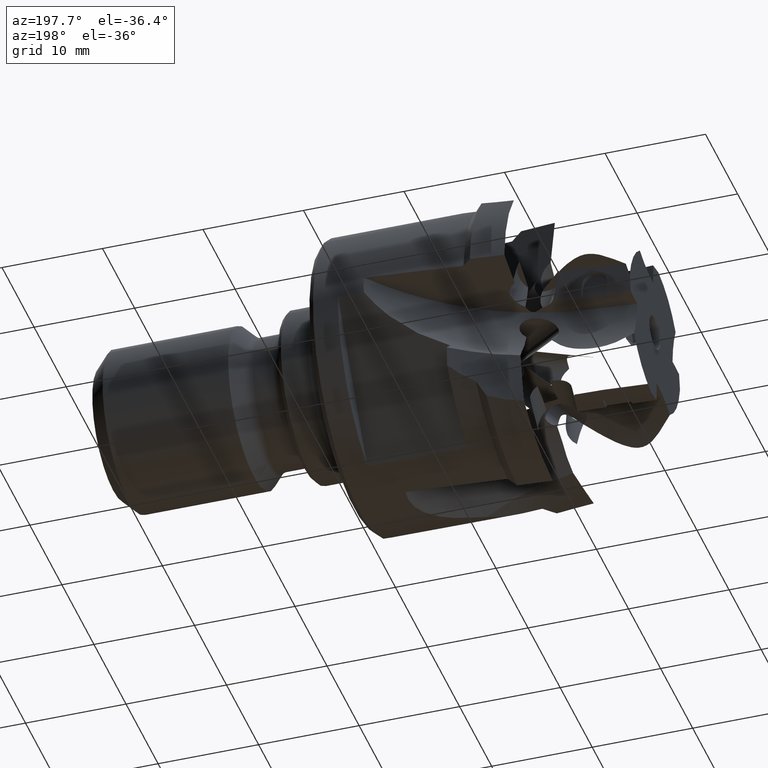
[diagram: clean part render]
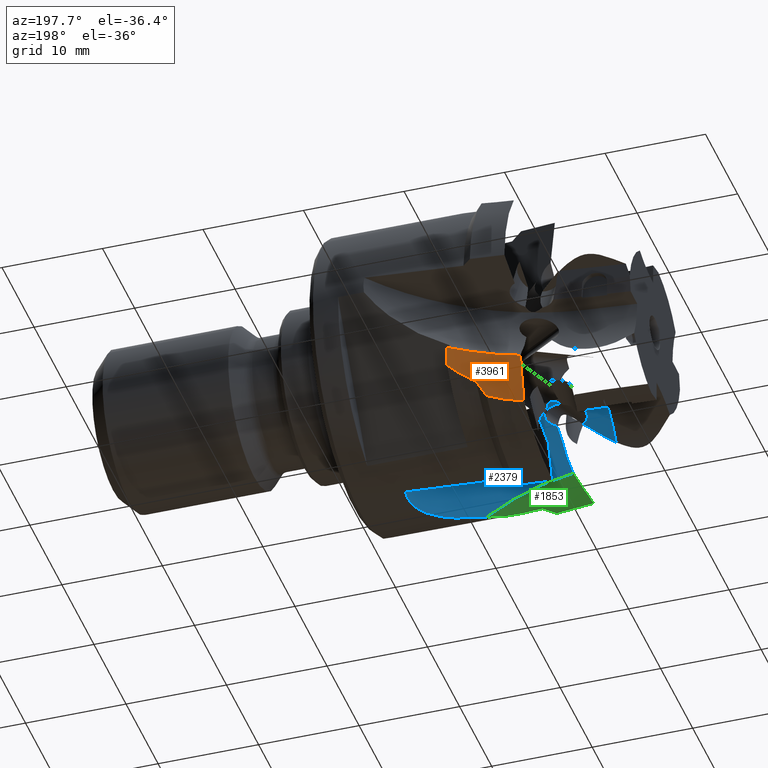
[diagram: same view with three faces highlighted in distinct colors, each labeled with its STEP entity id]
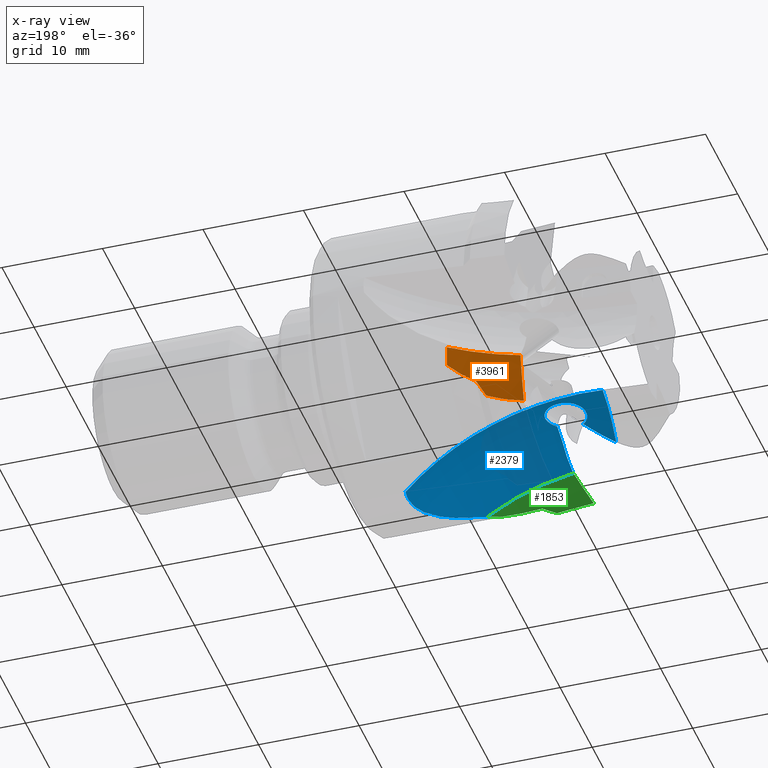
[diagram: x-ray of the same camera — body ghosted, the three highlighted faces saturated]
A machine part, auxiliary view with three faces highlighted in distinct colors.
The next image is the same camera in x-ray (body ghosted, the three faces saturated) — at least one of them is partly hidden behind the body in this view.
Their STEP definitions:

[orange] entity #3961 — the highlighted cylindrical surface (partial cylindrical patch) has radius 21.7261 mm, axis along (-0.0872, -0.0174, 0.996).
#105 = CYLINDRICAL_SURFACE ( 'NONE', #5272, 21.72606868832009400 ) ;
#125 = CARTESIAN_POINT ( 'NONE',  ( 11.05701801409096600, 9.311801826539401400, -12.29719365315754600 ) ) ;
#170 = EDGE_LOOP ( 'NONE', ( #4357, #189, #2855, #2577, #924, #4595 ) ) ;
#189 = ORIENTED_EDGE ( 'NONE', *, *, #4776, .T. ) ;
#243 = FACE_OUTER_BOUND ( 'NONE', #170, .T. ) ;
#252 = CARTESIAN_POINT ( 'NONE',  ( 11.37910749741807100, 9.370470575526384800, -6.912745893251020000 ) ) ;
#421 = VERTEX_POINT ( 'NONE', #252 ) ;
#523 = CARTESIAN_POINT ( 'NONE',  ( 13.39337320420237800, 9.818667118499060800, -11.90793983323574200 ) ) ;
#719 = CARTESIAN_POINT ( 'NONE',  ( 11.05701801409096600, 9.311801826539401400, -12.29719365315754600 ) ) ;
#790 = EDGE_CURVE ( 'NONE', #421, #1388, #3252, .T. ) ;
#812 = CARTESIAN_POINT ( 'NONE',  ( 17.90000000000000200, 11.86586100407704500, -7.674725482935604000 ) ) ;
#924 = ORIENTED_EDGE ( 'NONE', *, *, #2641, .F. ) ;
#947 = CARTESIAN_POINT ( 'NONE',  ( 11.09871389874220100, 9.318158399437784600, -11.84969132677126400 ) ) ;
#1191 = CARTESIAN_POINT ( 'NONE',  ( 17.89999999999999900, 11.84308156068769000, -8.366087445568902900 ) ) ;
#1221 = CARTESIAN_POINT ( 'NONE',  ( 15.13559766941669000, 10.46032291940538000, -10.46693095004296800 ) ) ;
#1370 = CARTESIAN_POINT ( 'NONE',  ( 11.14118274425741400, 9.324602336845453400, -11.17670939301054900 ) ) ;
#1388 = VERTEX_POINT ( 'NONE', #3106 ) ;
#1435 = VERTEX_POINT ( 'NONE', #719 ) ;
#1477 = CARTESIAN_POINT ( 'NONE',  ( 6.880592836451517000, 30.62570322403922400, -6.935363414447701700 ) ) ;
#1654 = CARTESIAN_POINT ( 'NONE',  ( 17.90000000000000200, 11.88896284582131300, -6.985286203351426700 ) ) ;
#1664 = AXIS2_PLACEMENT_3D ( 'NONE', #1477, #4293, #1878 ) ;
#1786 = CARTESIAN_POINT ( 'NONE',  ( 11.20966195258773700, 9.335957098224556100, -10.05493447266903000 ) ) ;
#1878 = DIRECTION ( 'NONE',  ( 0.9961935453064438800, 0.0000000000000000000, 0.08716891814045794900 ) ) ;
#1959 = B_SPLINE_CURVE_WITH_KNOTS ( 'NONE', 3,
 ( #5003, #2156, #523, #3363 ),
 .UNSPECIFIED., .F., .F.,
 ( 4, 4 ),
 ( 0.001068201408498498200, 0.004700179318308629100 ),
 .UNSPECIFIED. ) ;
#2074 = CARTESIAN_POINT ( 'NONE',  ( 14.50000000000038200, 10.21144299541527900, -11.56101452950269600 ) ) ;
#2119 = CARTESIAN_POINT ( 'NONE',  ( 15.42499999999999500, 10.58955133145809800, -9.905120019384625600 ) ) ;
#2156 = CARTESIAN_POINT ( 'NONE',  ( 12.24386339621617200, 9.517224552701307500, -12.14164143769769300 ) ) ;
#2169 = CARTESIAN_POINT ( 'NONE',  ( 17.89999999999999900, 11.84308156068769000, -8.366087445568902900 ) ) ;
#2182 = CARTESIAN_POINT ( 'NONE',  ( 11.33618519090786100, 9.360430750188070800, -7.810819471734794700 ) ) ;
#2309 = EDGE_CURVE ( 'NONE', #1435, #3999, #1959, .T. ) ;
#2363 = VERTEX_POINT ( 'NONE', #1191 ) ;
#2411 = EDGE_CURVE ( 'NONE', #2363, #1388, #4379, .T. ) ;
#2499 = B_SPLINE_CURVE_WITH_KNOTS ( 'NONE', 3,
 ( #125, #2976, #3377, #947, #3793, #1370, #4202, #1786, #4608, #2182, #5035 ),
 .UNSPECIFIED., .F., .F.,
 ( 4, 2, 1, 2, 2, 4 ),
 ( 5.563541519565735400E-005, 0.0003927354972152483200, 0.0007298355792348392100, 0.001404035743274026400, 0.002752436071352400100, 0.005449236727509148100 ),
 .UNSPECIFIED. ) ;
#2577 = ORIENTED_EDGE ( 'NONE', *, *, #2411, .F. ) ;
#2641 = EDGE_CURVE ( 'NONE', #4052, #2363, #3992, .T. ) ;
#2841 = CARTESIAN_POINT ( 'NONE',  ( 14.82635536525159200, 10.33310939868059800, -11.01811917768180600 ) ) ;
#2855 = ORIENTED_EDGE ( 'NONE', *, *, #790, .T. ) ;
#2888 = B_SPLINE_CURVE_WITH_KNOTS ( 'NONE', 3,
 ( #5278, #2841, #1221, #4067 ),
 .UNSPECIFIED., .F., .F.,
 ( 4, 4 ),
 ( 3.950778265904036300E-007, 0.001934452352681083500 ),
 .UNSPECIFIED. ) ;
#2976 = CARTESIAN_POINT ( 'NONE',  ( 11.08117857678265800, 9.315738048039625200, -12.18650287128587300 ) ) ;
#3106 = CARTESIAN_POINT ( 'NONE',  ( 17.89999999999999900, 11.91238655300085700, -6.297785510990721900 ) ) ;
#3252 = CIRCLE ( 'NONE', #1664, 21.72606868832009400 ) ;
#3256 = DIRECTION ( 'NONE',  ( 0.9961935453064438800, 0.0000000000000000000, 0.08716891814045796300 ) ) ;
#3362 = CARTESIAN_POINT ( 'NONE',  ( 16.33693089984693400, 10.97159515453714800, -9.496677449537456200 ) ) ;
#3363 = CARTESIAN_POINT ( 'NONE',  ( 14.50000000000038200, 10.21144299541527900, -11.56101452950269600 ) ) ;
#3377 = CARTESIAN_POINT ( 'NONE',  ( 11.08435232570300900, 9.316076932627277400, -12.07400180028712300 ) ) ;
#3652 = CARTESIAN_POINT ( 'NONE',  ( 6.235640340118845200, 30.49704686280209700, 0.4353545843762587400 ) ) ;
#3661 = CARTESIAN_POINT ( 'NONE',  ( 17.89999999999999900, 11.84308156068769000, -8.366087445568902900 ) ) ;
#3793 = CARTESIAN_POINT ( 'NONE',  ( 11.12013673531852300, 9.321321628183072900, -11.51321676252251300 ) ) ;
#3961 = ADVANCED_FACE ( 'NONE', ( #243 ), #105, .F. ) ;
#3992 = B_SPLINE_CURVE_WITH_KNOTS ( 'NONE', 3,
 ( #4191, #3362, #4593, #2169 ),
 .UNSPECIFIED., .F., .F.,
 ( 4, 4 ),
 ( 0.0000000000000000000, 0.003171927595614679300 ),
 .UNSPECIFIED. ) ;
#3999 = VERTEX_POINT ( 'NONE', #2074 ) ;
#4052 = VERTEX_POINT ( 'NONE', #2119 ) ;
#4067 = CARTESIAN_POINT ( 'NONE',  ( 15.42499999999999500, 10.58955133145809800, -9.905120019384625600 ) ) ;
#4191 = CARTESIAN_POINT ( 'NONE',  ( 15.42499999999999500, 10.58955133145809800, -9.905120019384625600 ) ) ;
#4202 = CARTESIAN_POINT ( 'NONE',  ( 11.18271580868635900, 9.331303145839886100, -10.50366817676328400 ) ) ;
#4293 = DIRECTION ( 'NONE',  ( -0.08715574274765840200, -0.01738599476177432300, 0.9960429728140486300 ) ) ;
#4357 = ORIENTED_EDGE ( 'NONE', *, *, #2309, .F. ) ;
#4379 =( BOUNDED_CURVE ( )  B_SPLINE_CURVE ( 3, ( #3661, #812, #1654, #4467 ),
 .UNSPECIFIED., .F., .F. ) 
 B_SPLINE_CURVE_WITH_KNOTS ( ( 4, 4 ),
 ( 5.236962429930007300, 5.246568327830590100 ),
 .UNSPECIFIED. ) 
 CURVE ( )  GEOMETRIC_REPRESENTATION_ITEM ( )  RATIONAL_B_SPLINE_CURVE ( ( 1.000000000000000000, 0.9999923105752421800, 0.9999923105752421800, 1.000000000000000000 ) ) 
 REPRESENTATION_ITEM ( '' )  );
#4467 = CARTESIAN_POINT ( 'NONE',  ( 17.89999999999999900, 11.91238655300085700, -6.297785510990721900 ) ) ;
#4520 = EDGE_CURVE ( 'NONE', #3999, #4052, #2888, .T. ) ;
#4593 = CARTESIAN_POINT ( 'NONE',  ( 17.16458162819480300, 11.39873358020110100, -8.995109005343985900 ) ) ;
#4595 = ORIENTED_EDGE ( 'NONE', *, *, #4520, .F. ) ;
#4608 = CARTESIAN_POINT ( 'NONE',  ( 11.28774989754189700, 9.350314593344421600, -8.708583652300008600 ) ) ;
#4776 = EDGE_CURVE ( 'NONE', #1435, #421, #2499, .T. ) ;
#5003 = CARTESIAN_POINT ( 'NONE',  ( 11.05701801409096600, 9.311801826539401400, -12.29719365315754600 ) ) ;
#5035 = CARTESIAN_POINT ( 'NONE',  ( 11.37910749741807100, 9.370470575526384800, -6.912745893251020000 ) ) ;
#5272 = AXIS2_PLACEMENT_3D ( 'NONE', #3652, #5273, #3256 ) ;
#5273 = DIRECTION ( 'NONE',  ( -0.08715574274765840200, -0.01738599476177432300, 0.9960429728140486300 ) ) ;
#5278 = CARTESIAN_POINT ( 'NONE',  ( 14.50000000000038200, 10.21144299541527900, -11.56101452950269600 ) ) ;

[blue] entity #2379 — the highlighted toroidal blend (fillet) surface has major radius 15 mm and minor (blend) radius 10 mm.
#43 = ORIENTED_EDGE ( 'NONE', *, *, #1155, .T. ) ;
#147 = CARTESIAN_POINT ( 'NONE',  ( 8.515038379111340200, -4.492260514789945700, -6.680072733957660000 ) ) ;
#179 = CARTESIAN_POINT ( 'NONE',  ( 11.64256579499039300, -4.466984686839124300, -7.264191897523410500 ) ) ;
#246 = CIRCLE ( 'NONE', #2618, 21.72606868832010100 ) ;
#318 = CARTESIAN_POINT ( 'NONE',  ( 6.235640340118845200, -0.09695857922223392900, -30.50000000000000000 ) ) ;
#360 = CARTESIAN_POINT ( 'NONE',  ( 12.40235321414293800, -1.743268434096503900, -6.476139456708513500 ) ) ;
#372 = CARTESIAN_POINT ( 'NONE',  ( 10.08751664636560400, -0.5688430104885406900, -5.819964564507869500 ) ) ;
#391 = CARTESIAN_POINT ( 'NONE',  ( 8.805979628340272900, -3.244691011060621300, -6.188207235549824300 ) ) ;
#398 = CARTESIAN_POINT ( 'NONE',  ( 22.64090620254961200, -4.538469945289403300, -13.77478334541834700 ) ) ;
#454 = VERTEX_POINT ( 'NONE', #1940 ) ;
#506 = CARTESIAN_POINT ( 'NONE',  ( 25.34057972918638400, -0.1871420122117618300, -14.50545969096602400 ) ) ;
#558 = CARTESIAN_POINT ( 'NONE',  ( 7.681312353300583600, -5.295997647431952300, -7.029841936098550000 ) ) ;
#586 = CARTESIAN_POINT ( 'NONE',  ( 11.65869732733849200, -3.340161131643376400, -6.747328634741033500 ) ) ;
#617 = CIRCLE ( 'NONE', #2045, 10.00000000000000200 ) ;
#706 = EDGE_CURVE ( 'NONE', #5281, #729, #1665, .T. ) ;
#726 = DIRECTION ( 'NONE',  ( -0.9961946980917454300, -0.08715574274765840200, 0.0000000000000000000 ) ) ;
#729 = VERTEX_POINT ( 'NONE', #5051 ) ;
#764 = CARTESIAN_POINT ( 'NONE',  ( 12.40311773651894900, -1.384826067487034300, -6.410360841016163200 ) ) ;
#784 = CARTESIAN_POINT ( 'NONE',  ( 9.349131664149631100, -1.092947516492455600, -5.762206813191768100 ) ) ;
#799 = CARTESIAN_POINT ( 'NONE',  ( 8.982825364391247900, -3.431259524060175500, -6.278460838178846300 ) ) ;
#807 = CARTESIAN_POINT ( 'NONE',  ( 23.57876981133510700, -3.646934935347255500, -14.03810589235512300 ) ) ;
#881 = ORIENTED_EDGE ( 'NONE', *, *, #2133, .T. ) ;
#899 = EDGE_CURVE ( 'NONE', #1443, #454, #4719, .T. ) ;
#905 = B_SPLINE_CURVE_WITH_KNOTS ( 'NONE', 3,
 ( #3374, #4201, #3828, #1413, #4236, #1821, #4649, #2219, #5066, #2620, #179, #3024, #586, #3428 ),
 .UNSPECIFIED., .F., .F.,
 ( 4, 2, 2, 2, 2, 2, 4 ),
 ( 0.0000000000000000000, 0.0006207502686696417600, 0.001241500537339283500, 0.001862250806008924900, 0.002483001074678567000, 0.003724501612017852000, 0.004966002149357139200 ),
 .UNSPECIFIED. ) ;
#920 = CARTESIAN_POINT ( 'NONE',  ( 25.38898366338871800, 0.6959169704677447000, -14.48497592856717600 ) ) ;
#965 = CARTESIAN_POINT ( 'NONE',  ( 6.749510904247070000, -5.970526004057522800, -7.423048672349348300 ) ) ;
#977 = AXIS2_PLACEMENT_3D ( 'NONE', #318, #3152, #726 ) ;
#1077 = TOROIDAL_SURFACE ( 'NONE', #2490, 15.00000000000000200, 10.00000000000000200 ) ;
#1144 = DIRECTION ( 'NONE',  ( 0.9961946980917456600, 0.08715574274765840200, 6.086052987529241100E-016 ) ) ;
#1155 = EDGE_CURVE ( 'NONE', #2192, #454, #1405, .T. ) ;
#1171 = CARTESIAN_POINT ( 'NONE',  ( 12.34089135332565600, -1.127742843906378400, -6.354305585819900200 ) ) ;
#1193 = CARTESIAN_POINT ( 'NONE',  ( 8.994134762105252500, -1.504782266553987200, -5.773673441667364500 ) ) ;
#1196 = EDGE_CURVE ( 'NONE', #2719, #1443, #246, .T. ) ;
#1210 = CARTESIAN_POINT ( 'NONE',  ( 9.205142161312094700, -3.567679308090918600, -6.361626818967677900 ) ) ;
#1219 = CARTESIAN_POINT ( 'NONE',  ( 24.38241051257135100, -2.617081937783515900, -14.26698340604646700 ) ) ;
#1328 = EDGE_LOOP ( 'NONE', ( #3017, #4989, #881, #2964, #1820, #43, #2084 ) ) ;
#1341 = CARTESIAN_POINT ( 'NONE',  ( 25.33950646119371400, 1.355138320165186300, -14.43817025567056300 ) ) ;
#1405 = CIRCLE ( 'NONE', #977, 25.00000000000000000 ) ;
#1413 = CARTESIAN_POINT ( 'NONE',  ( 11.48493059040608200, -6.483476763012770800, -8.677977519832849000 ) ) ;
#1443 = VERTEX_POINT ( 'NONE', #2431 ) ;
#1609 = CARTESIAN_POINT ( 'NONE',  ( 12.10742755888736800, -0.7483190973801329100, -6.248726658473148500 ) ) ;
#1629 = CARTESIAN_POINT ( 'NONE',  ( 8.737451428858268100, -1.977943305495135400, -5.829447491432855300 ) ) ;
#1665 = B_SPLINE_CURVE_WITH_KNOTS ( 'NONE', 3,
 ( #2595, #5038, #2186, #147, #2994, #558, #3395, #965 ),
 .UNSPECIFIED., .F., .F.,
 ( 4, 2, 2, 4 ),
 ( 0.01105054996784007300, 0.01196262143170225300, 0.01287469289556443500, 0.01469883582328879500 ),
 .UNSPECIFIED. ) ;
#1820 = ORIENTED_EDGE ( 'NONE', *, *, #2860, .F. ) ;
#1821 = CARTESIAN_POINT ( 'NONE',  ( 11.61324121807360800, -6.006703365417106300, -8.298901688357661400 ) ) ;
#1940 = CARTESIAN_POINT ( 'NONE',  ( 25.30076740495740500, 1.571023907632305800, -14.41464130256621300 ) ) ;
#2012 = CARTESIAN_POINT ( 'NONE',  ( 11.65753180087851800, -0.4658998487443887800, -6.118773273624314300 ) ) ;
#2024 = DIRECTION ( 'NONE',  ( -0.08715574274765840200, 0.9961946980917455500, 6.956390396483597400E-015 ) ) ;
#2029 = CARTESIAN_POINT ( 'NONE',  ( 8.612118178092220700, -2.497923524530653700, -5.936614056825361800 ) ) ;
#2039 = CARTESIAN_POINT ( 'NONE',  ( 20.52341424227732200, -5.975691452295363200, -13.21767817297962100 ) ) ;
#2045 = AXIS2_PLACEMENT_3D ( 'NONE', #3581, #1144, #3991 ) ;
#2084 = ORIENTED_EDGE ( 'NONE', *, *, #899, .F. ) ;
#2133 = EDGE_CURVE ( 'NONE', #3270, #5281, #4200, .T. ) ;
#2186 = CARTESIAN_POINT ( 'NONE',  ( 8.910597050416445300, -4.058206200987888800, -6.523554801940608000 ) ) ;
#2192 = VERTEX_POINT ( 'NONE', #4887 ) ;
#2219 = CARTESIAN_POINT ( 'NONE',  ( 11.62690379072418300, -5.510978594701319000, -7.921991764348117500 ) ) ;
#2379 = ADVANCED_FACE ( 'NONE', ( #4956 ), #1077, .F. ) ;
#2381 = DIRECTION ( 'NONE',  ( -0.08715574274765840200, 0.9961946980917455500, 6.956390396483597400E-015 ) ) ;
#2383 = CARTESIAN_POINT ( 'NONE',  ( 12.12841511724199100, -2.411077065533565800, -6.566400071001692300 ) ) ;
#2402 = CARTESIAN_POINT ( 'NONE',  ( 11.13492045812465000, -0.3656195679773470200, -6.000350552591209300 ) ) ;
#2418 = CARTESIAN_POINT ( 'NONE',  ( 8.658312899695939500, -2.933051534912304100, -6.067559988247527500 ) ) ;
#2431 = CARTESIAN_POINT ( 'NONE',  ( 19.76019912656191100, -6.341979804039426400, -13.03952806527751700 ) ) ;
#2490 = AXIS2_PLACEMENT_3D ( 'NONE', #2823, #2024, #3227 ) ;
#2520 = CARTESIAN_POINT ( 'NONE',  ( 11.65016111285255100, -2.948032725041609400, -6.612322660711785500 ) ) ;
#2595 = CARTESIAN_POINT ( 'NONE',  ( 9.286948919763599300, -3.598368822639208500, -6.385933471378742800 ) ) ;
#2618 = AXIS2_PLACEMENT_3D ( 'NONE', #4815, #2381, #5234 ) ;
#2620 = CARTESIAN_POINT ( 'NONE',  ( 11.63738157166819700, -4.824658865898745900, -7.466517449746038300 ) ) ;
#2719 = VERTEX_POINT ( 'NONE', #4219 ) ;
#2792 = CARTESIAN_POINT ( 'NONE',  ( 12.35888060038929800, -1.921649702263000800, -6.503348702417672400 ) ) ;
#2813 = CARTESIAN_POINT ( 'NONE',  ( 10.60314403707627500, -0.4154720817635763100, -5.900677034844982800 ) ) ;
#2823 = CARTESIAN_POINT ( 'NONE',  ( 6.235640340118845200, -0.09695857922223263800, -30.50000000000000000 ) ) ;
#2825 = CARTESIAN_POINT ( 'NONE',  ( 8.758263303328849500, -3.170838592315404100, -6.156842258570067700 ) ) ;
#2838 = CARTESIAN_POINT ( 'NONE',  ( 22.30143319302125700, -4.809680050700810000, -13.68165297513175800 ) ) ;
#2860 = EDGE_CURVE ( 'NONE', #2192, #729, #617, .T. ) ;
#2945 = CARTESIAN_POINT ( 'NONE',  ( 25.25626421127209300, -0.6180941141645484000, -14.49302102146409000 ) ) ;
#2964 = ORIENTED_EDGE ( 'NONE', *, *, #706, .T. ) ;
#2994 = CARTESIAN_POINT ( 'NONE',  ( 8.311445753925989200, -4.700150141738921800, -6.764113308000601100 ) ) ;
#3017 = ORIENTED_EDGE ( 'NONE', *, *, #1196, .F. ) ;
#3024 = CARTESIAN_POINT ( 'NONE',  ( 11.65229283007205700, -3.725832115899951000, -6.904703149730573300 ) ) ;
#3152 = DIRECTION ( 'NONE',  ( -0.08715574274765840200, 0.9961946980917455500, 6.956390396483597400E-015 ) ) ;
#3194 = CARTESIAN_POINT ( 'NONE',  ( 12.41020667739263300, -1.475566190515883200, -6.427960131127540500 ) ) ;
#3214 = CARTESIAN_POINT ( 'NONE',  ( 9.764551446179895700, -0.7469048015788649600, -5.782641872056179200 ) ) ;
#3227 = DIRECTION ( 'NONE',  ( -0.9961946980917454300, -0.08715574274765838800, 1.206741372883970600E-031 ) ) ;
#3231 = CARTESIAN_POINT ( 'NONE',  ( 8.918596550000284400, -3.374892984630489100, -6.249085388134564500 ) ) ;
#3243 = CARTESIAN_POINT ( 'NONE',  ( 23.27895531259836300, -3.957304061100608300, -13.95285312133352000 ) ) ;
#3270 = VERTEX_POINT ( 'NONE', #2520 ) ;
#3352 = CARTESIAN_POINT ( 'NONE',  ( 25.38706660557347700, 0.4723879057772911200, -14.49397100215186500 ) ) ;
#3373 = EDGE_CURVE ( 'NONE', #2719, #3270, #905, .T. ) ;
#3374 = CARTESIAN_POINT ( 'NONE',  ( 11.37910749741807100, -7.075230309561560700, -9.248399356544124900 ) ) ;
#3395 = CARTESIAN_POINT ( 'NONE',  ( 7.237360433593748300, -5.657643325198479900, -7.226557950404125700 ) ) ;
#3428 = CARTESIAN_POINT ( 'NONE',  ( 11.65016111285255100, -2.948032725041609400, -6.612322660711785500 ) ) ;
#3581 = CARTESIAN_POINT ( 'NONE',  ( 6.235640340118845200, -0.09695857922233737400, -15.49999999999999800 ) ) ;
#3609 = CARTESIAN_POINT ( 'NONE',  ( 12.36835051011845400, -1.211440031770945300, -6.373614484776818600 ) ) ;
#3628 = CARTESIAN_POINT ( 'NONE',  ( 9.219735175015324900, -1.223990973709646200, -5.761335838971192800 ) ) ;
#3647 = CARTESIAN_POINT ( 'NONE',  ( 9.126108806982614400, -3.527863383494886900, -6.334801290449791900 ) ) ;
#3656 = CARTESIAN_POINT ( 'NONE',  ( 24.13120789750474400, -2.976510190610653700, -14.19538441018145700 ) ) ;
#3767 = CARTESIAN_POINT ( 'NONE',  ( 25.36508079598128900, 1.136974927307224500, -14.45704382284394600 ) ) ;
#3828 = CARTESIAN_POINT ( 'NONE',  ( 11.41244624163701000, -6.786522117301056600, -8.950505995124727200 ) ) ;
#3991 = DIRECTION ( 'NONE',  ( 0.08715574274765836000, -0.9961946980917455500, -6.938893903907226800E-015 ) ) ;
#4001 = CARTESIAN_POINT ( 'NONE',  ( 11.78656320072315300, -2.828448277283377000, -6.605329114455754400 ) ) ;
#4023 = CARTESIAN_POINT ( 'NONE',  ( 12.22569530952898600, -0.8865460343204262200, -6.292720933339621700 ) ) ;
#4039 = CARTESIAN_POINT ( 'NONE',  ( 8.896636479931176600, -1.654924531196340800, -5.786645277193440700 ) ) ;
#4058 = CARTESIAN_POINT ( 'NONE',  ( 9.286948919763599300, -3.598368822639208500, -6.385933471378742800 ) ) ;
#4065 = CARTESIAN_POINT ( 'NONE',  ( 24.80956010891358700, -1.862226284890237300, -14.38499380053192000 ) ) ;
#4133 = CARTESIAN_POINT ( 'NONE',  ( 24.98814557287161600, -1.463724322523958900, -14.43215887420231500 ) ) ;
#4176 = CARTESIAN_POINT ( 'NONE',  ( 25.30076740495740500, 1.571023907632305800, -14.41464130256621300 ) ) ;
#4200 = B_SPLINE_CURVE_WITH_KNOTS ( 'NONE', 3,
 ( #4405, #4001, #4818, #2383, #5237, #2792, #360, #3194, #764, #3609, #1171, #4023, #1609, #4423, #2012, #4839, #2402, #5253, #2813, #372, #3214, #784, #3628, #1193, #4039, #1629, #4439, #2029, #4857, #2418, #5269, #2825, #391, #3231, #799, #3647, #1210, #4058 ),
 .UNSPECIFIED., .F., .F.,
 ( 4, 2, 2, 2, 2, 2, 2, 2, 2, 2, 2, 2, 2, 2, 2, 2, 2, 2, 4 ),
 ( 0.003158957002748431300, 0.003701081345583205000, 0.004243205688417978800, 0.004785330031252752100, 0.005056392202670139200, 0.005327454374087525400, 0.005869578716922299600, 0.006411703059757073800, 0.006953827402591846200, 0.007495951745426620400, 0.008580200431096161900, 0.009122324773930930900, 0.009664449116765699800, 0.01020657345960046900, 0.01074869780243523800, 0.01101975997385262400, 0.01129082214527000700, 0.01156188431668739300, 0.01183294648810477600 ),
 .UNSPECIFIED. ) ;
#4201 = CARTESIAN_POINT ( 'NONE',  ( 11.39599755291137100, -6.933089684553280600, -9.096996975690368400 ) ) ;
#4219 = CARTESIAN_POINT ( 'NONE',  ( 11.37910749741807100, -7.075230309561560700, -9.248399356544124900 ) ) ;
#4236 = CARTESIAN_POINT ( 'NONE',  ( 11.54287660901345800, -6.326973000553058700, -8.552414785012562200 ) ) ;
#4367 = CARTESIAN_POINT ( 'NONE',  ( 9.286948919763599300, -3.598368822639208500, -6.385933471378742800 ) ) ;
#4405 = CARTESIAN_POINT ( 'NONE',  ( 11.65016111285255100, -2.948032725041609400, -6.612322660711785500 ) ) ;
#4423 = CARTESIAN_POINT ( 'NONE',  ( 11.82333759089800300, -0.5386067974320121200, -6.161866323001037300 ) ) ;
#4439 = CARTESIAN_POINT ( 'NONE',  ( 8.677140586874708500, -2.149157609789038600, -5.859259437556993100 ) ) ;
#4649 = CARTESIAN_POINT ( 'NONE',  ( 11.62040207614973900, -5.842839617044858400, -8.169476005907974100 ) ) ;
#4719 = B_SPLINE_CURVE_WITH_KNOTS ( 'NONE', 3,
 ( #4862, #2039, #5276, #2838, #398, #3243, #807, #3656, #1219, #4065, #4133, #2945, #506, #3352, #920, #3767, #1341, #4176 ),
 .UNSPECIFIED., .F., .F.,
 ( 4, 2, 2, 2, 2, 2, 2, 2, 4 ),
 ( 0.003162182537564143700, 0.005757075737112047100, 0.007054522336885998800, 0.008351968936659952300, 0.009649415536433904000, 0.01094686213620785600, 0.01224430873598181100, 0.01289303203586878600, 0.01354175533575576300 ),
 .UNSPECIFIED. ) ;
#4815 = CARTESIAN_POINT ( 'NONE',  ( 6.880592836451517000, -7.468799345101151000, -30.50000000000005000 ) ) ;
#4818 = CARTESIAN_POINT ( 'NONE',  ( 11.91045770019526300, -2.697988978098466300, -6.594880555015366900 ) ) ;
#4839 = CARTESIAN_POINT ( 'NONE',  ( 11.31548757596852000, -0.3800844295813908800, -6.038526002489470900 ) ) ;
#4857 = CARTESIAN_POINT ( 'NONE',  ( 8.607294307123858300, -2.676495669527982500, -5.984464979520614800 ) ) ;
#4862 = CARTESIAN_POINT ( 'NONE',  ( 19.76019912656191100, -6.341979804039426400, -13.03952806527751700 ) ) ;
#4887 = CARTESIAN_POINT ( 'NONE',  ( 6.235640340118845200, -0.09695857922240849700, -5.499999999999999100 ) ) ;
#4956 = FACE_OUTER_BOUND ( 'NONE', #1328, .T. ) ;
#4989 = ORIENTED_EDGE ( 'NONE', *, *, #3373, .T. ) ;
#5038 = CARTESIAN_POINT ( 'NONE',  ( 9.103039246828132000, -3.831313620027711600, -6.450913468410891300 ) ) ;
#5051 = CARTESIAN_POINT ( 'NONE',  ( 6.749510904247070000, -5.970526004057522800, -7.423048672349348300 ) ) ;
#5066 = CARTESIAN_POINT ( 'NONE',  ( 11.62927645837238400, -5.341849983675166100, -7.803824103601521700 ) ) ;
#5234 = DIRECTION ( 'NONE',  ( -0.9961946980917455500, -0.08715574274765841600, 0.0000000000000000000 ) ) ;
#5237 = CARTESIAN_POINT ( 'NONE',  ( 12.22248985752845800, -2.253619499335303800, -6.548208711855129300 ) ) ;
#5253 = CARTESIAN_POINT ( 'NONE',  ( 10.78112887169917900, -0.3833340979982718900, -5.931895541462076900 ) ) ;
#5269 = CARTESIAN_POINT ( 'NONE',  ( 8.685007365822459100, -3.015871600143108700, -6.096882265612149100 ) ) ;
#5276 = CARTESIAN_POINT ( 'NONE',  ( 21.25853223110635800, -5.556980533064605200, -13.40345360880189000 ) ) ;
#5281 = VERTEX_POINT ( 'NONE', #4367 ) ;

[green] entity #1853 — the highlighted cylindrical surface (partial cylindrical patch) has radius 21.7261 mm, axis along (-0.0872, 0.9962, 0).
#151 = CARTESIAN_POINT ( 'NONE',  ( 18.61018540410417200, -7.903573263275935000, -12.15837274158492000 ) ) ;
#172 = CARTESIAN_POINT ( 'NONE',  ( 11.20966195258841600, -10.21633797519451100, -9.159052383621787600 ) ) ;
#211 = EDGE_CURVE ( 'NONE', #1710, #2719, #2176, .T. ) ;
#246 = CIRCLE ( 'NONE', #2618, 21.72606868832010100 ) ;
#337 = CARTESIAN_POINT ( 'NONE',  ( 15.42499999999999500, -10.08842457545399000, -10.41507031111052900 ) ) ;
#355 = CARTESIAN_POINT ( 'NONE',  ( 17.16897359493318100, -9.190066398557890500, -11.24232575319863500 ) ) ;
#425 = CARTESIAN_POINT ( 'NONE',  ( 14.82635536525131100, -11.19677868975081100, -10.13924292200614600 ) ) ;
#502 = CARTESIAN_POINT ( 'NONE',  ( 12.24386339622089900, -12.30589067794507600, -9.303874172118987900 ) ) ;
#507 = B_SPLINE_CURVE_WITH_KNOTS ( 'NONE', 3,
 ( #3339, #502, #1752, #4573 ),
 .UNSPECIFIED., .F., .F.,
 ( 4, 4 ),
 ( 0.001068201408506903400, 0.004700179318308678500 ),
 .UNSPECIFIED. ) ;
#529 = DIRECTION ( 'NONE',  ( -0.08715574274765840200, 0.9961946980917455500, 6.956390396483597400E-015 ) ) ;
#561 = CARTESIAN_POINT ( 'NONE',  ( 19.23667597997844000, -7.170308494444712200, -12.61049154338746100 ) ) ;
#576 = CARTESIAN_POINT ( 'NONE',  ( 11.33618519090801900, -7.972991887973736700, -9.222687515217664600 ) ) ;
#835 = CARTESIAN_POINT ( 'NONE',  ( 15.13559766941662600, -10.64789459281642100, -10.27605662846784200 ) ) ;
#884 = FACE_OUTER_BOUND ( 'NONE', #1917, .T. ) ;
#970 = CARTESIAN_POINT ( 'NONE',  ( 19.76019912656191100, -6.341979804039426400, -13.03952806527751700 ) ) ;
#1196 = EDGE_CURVE ( 'NONE', #2719, #1443, #246, .T. ) ;
#1197 = EDGE_CURVE ( 'NONE', #1433, #1443, #1453, .T. ) ;
#1239 = ORIENTED_EDGE ( 'NONE', *, *, #4844, .F. ) ;
#1433 = VERTEX_POINT ( 'NONE', #2745 ) ;
#1443 = VERTEX_POINT ( 'NONE', #2431 ) ;
#1453 = B_SPLINE_CURVE_WITH_KNOTS ( 'NONE', 3,
 ( #337, #1992, #355, #3191, #2597, #151, #2996, #561, #3398, #970 ),
 .UNSPECIFIED., .F., .F.,
 ( 4, 2, 2, 2, 4 ),
 ( 0.0000000000000000000, 0.003180334536051582800, 0.003975418170064476100, 0.004770501804077369700, 0.006360669072103158700 ),
 .UNSPECIFIED. ) ;
#1597 = B_SPLINE_CURVE_WITH_KNOTS ( 'NONE', 3,
 ( #3264, #425, #835, #3682 ),
 .UNSPECIFIED., .F., .F.,
 ( 4, 4 ),
 ( 3.950778255610155600E-007, 0.001934452352681371200 ),
 .UNSPECIFIED. ) ;
#1637 = AXIS2_PLACEMENT_3D ( 'NONE', #2948, #529, #3355 ) ;
#1672 = ORIENTED_EDGE ( 'NONE', *, *, #3536, .F. ) ;
#1710 = VERTEX_POINT ( 'NONE', #3493 ) ;
#1752 = CARTESIAN_POINT ( 'NONE',  ( 13.39337320420479200, -12.07748556554545200, -9.609349482139624100 ) ) ;
#1815 = CARTESIAN_POINT ( 'NONE',  ( 11.08435232570421600, -12.23475083234163900, -9.103937662244373300 ) ) ;
#1853 = ADVANCED_FACE ( 'NONE', ( #884 ), #4246, .F. ) ;
#1917 = EDGE_LOOP ( 'NONE', ( #1672, #5055, #4953, #4558, #1239 ) ) ;
#1992 = CARTESIAN_POINT ( 'NONE',  ( 16.33934789977092400, -9.685647089872194500, -10.80521556818558300 ) ) ;
#2041 = CARTESIAN_POINT ( 'NONE',  ( 14.49999999999986300, -11.73746798446085800, -10.00812021879037200 ) ) ;
#2176 = B_SPLINE_CURVE_WITH_KNOTS ( 'NONE', 3,
 ( #3405, #4228, #1815, #4642, #2211, #5059, #2614, #172, #3015, #576, #3424 ),
 .UNSPECIFIED., .F., .F.,
 ( 4, 2, 1, 2, 2, 4 ),
 ( 5.563541521692000200E-005, 0.0003927354972352762400, 0.0007298355792536325500, 0.001404035743290344900, 0.002752436071363764300, 0.005449236727510598300 ),
 .UNSPECIFIED. ) ;
#2211 = CARTESIAN_POINT ( 'NONE',  ( 11.12013673531957600, -11.67414273741502100, -9.118968607410577600 ) ) ;
#2381 = DIRECTION ( 'NONE',  ( -0.08715574274765840200, 0.9961946980917455500, 6.956390396483597400E-015 ) ) ;
#2431 = CARTESIAN_POINT ( 'NONE',  ( 19.76019912656191100, -6.341979804039426400, -13.03952806527751700 ) ) ;
#2597 = CARTESIAN_POINT ( 'NONE',  ( 18.26902710846816500, -8.246026898459428300, -11.92876935987820100 ) ) ;
#2614 = CARTESIAN_POINT ( 'NONE',  ( 11.18271580868715300, -10.66492211230195200, -9.146567657070692200 ) ) ;
#2618 = AXIS2_PLACEMENT_3D ( 'NONE', #4815, #2381, #5234 ) ;
#2719 = VERTEX_POINT ( 'NONE', #4219 ) ;
#2745 = CARTESIAN_POINT ( 'NONE',  ( 15.42499999999999500, -10.08842457545399000, -10.41507031111052900 ) ) ;
#2948 = CARTESIAN_POINT ( 'NONE',  ( 6.235640340118845200, -0.09695857922223379000, -30.50000000000000000 ) ) ;
#2996 = CARTESIAN_POINT ( 'NONE',  ( 18.77275266182331800, -7.725567141290249600, -12.27243120018419900 ) ) ;
#3015 = CARTESIAN_POINT ( 'NONE',  ( 11.28774989754225200, -8.870442783421781400, -9.196904753749727500 ) ) ;
#3191 = CARTESIAN_POINT ( 'NONE',  ( 18.09006352349844000, -8.410685533441066400, -11.81303070361280300 ) ) ;
#3264 = CARTESIAN_POINT ( 'NONE',  ( 14.49999999999986300, -11.73746798446085800, -10.00812021879037200 ) ) ;
#3339 = CARTESIAN_POINT ( 'NONE',  ( 11.05701801409519200, -12.45783408112223100, -9.095767972346603600 ) ) ;
#3355 = DIRECTION ( 'NONE',  ( -0.9961946980917455500, -0.08715574274765840200, 0.0000000000000000000 ) ) ;
#3398 = CARTESIAN_POINT ( 'NONE',  ( 19.51433841565132000, -6.771910032693081200, -12.83042472859080600 ) ) ;
#3405 = CARTESIAN_POINT ( 'NONE',  ( 11.05701801409519200, -12.45783408112223100, -9.095767972346603600 ) ) ;
#3424 = CARTESIAN_POINT ( 'NONE',  ( 11.37910749741807100, -7.075230309561560700, -9.248399356544124900 ) ) ;
#3493 = CARTESIAN_POINT ( 'NONE',  ( 11.05701801409519200, -12.45783408112223100, -9.095767972346603600 ) ) ;
#3536 = EDGE_CURVE ( 'NONE', #1710, #4531, #507, .T. ) ;
#3682 = CARTESIAN_POINT ( 'NONE',  ( 15.42499999999999500, -10.08842457545399000, -10.41507031111052900 ) ) ;
#4219 = CARTESIAN_POINT ( 'NONE',  ( 11.37910749741807100, -7.075230309561560700, -9.248399356544124900 ) ) ;
#4228 = CARTESIAN_POINT ( 'NONE',  ( 11.08117857678629800, -12.34722885453060900, -9.101635414855211400 ) ) ;
#4246 = CYLINDRICAL_SURFACE ( 'NONE', #1637, 21.72606868832009800 ) ;
#4531 = VERTEX_POINT ( 'NONE', #2041 ) ;
#4558 = ORIENTED_EDGE ( 'NONE', *, *, #1197, .F. ) ;
#4573 = CARTESIAN_POINT ( 'NONE',  ( 14.49999999999986300, -11.73746798446085800, -10.00812021879037200 ) ) ;
#4642 = CARTESIAN_POINT ( 'NONE',  ( 11.09871389874335000, -12.01051084900294600, -9.109933569589317800 ) ) ;
#4815 = CARTESIAN_POINT ( 'NONE',  ( 6.880592836451517000, -7.468799345101151000, -30.50000000000005000 ) ) ;
#4844 = EDGE_CURVE ( 'NONE', #4531, #1433, #1597, .T. ) ;
#4953 = ORIENTED_EDGE ( 'NONE', *, *, #1196, .T. ) ;
#5055 = ORIENTED_EDGE ( 'NONE', *, *, #211, .T. ) ;
#5059 = CARTESIAN_POINT ( 'NONE',  ( 11.14118274425837800, -11.33774387586754700, -9.128121679786984200 ) ) ;
#5234 = DIRECTION ( 'NONE',  ( -0.9961946980917455500, -0.08715574274765841600, 0.0000000000000000000 ) ) ;